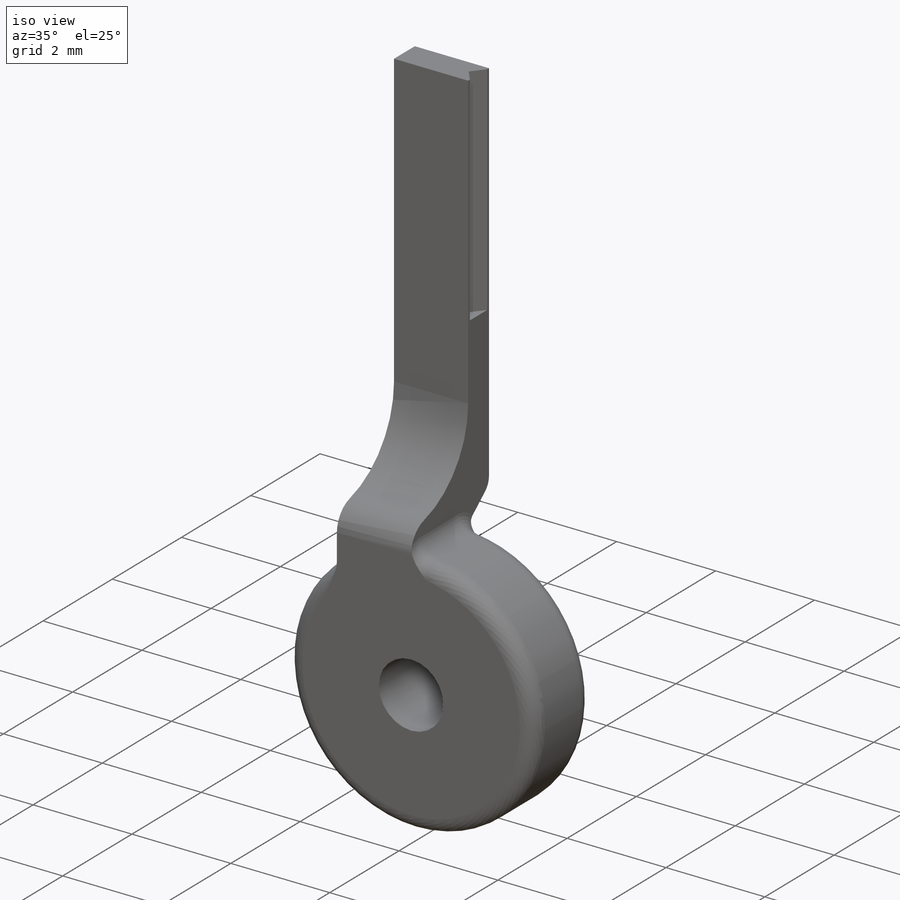
[diagram: iso view]
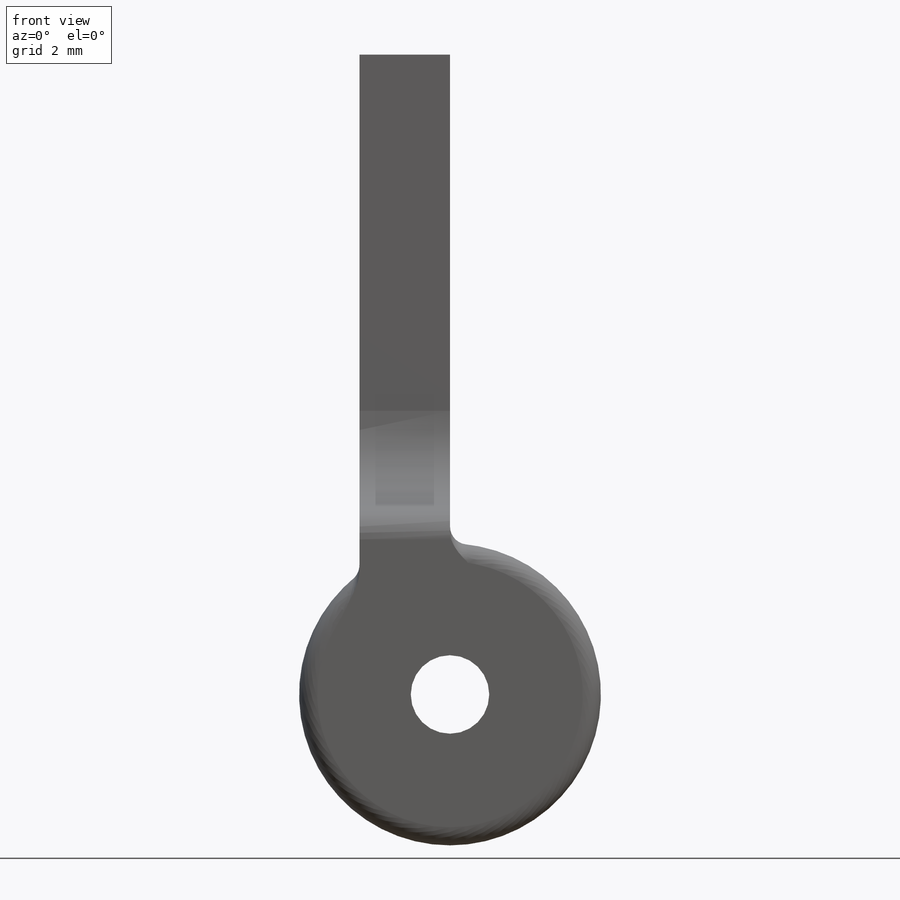
[diagram: front view]
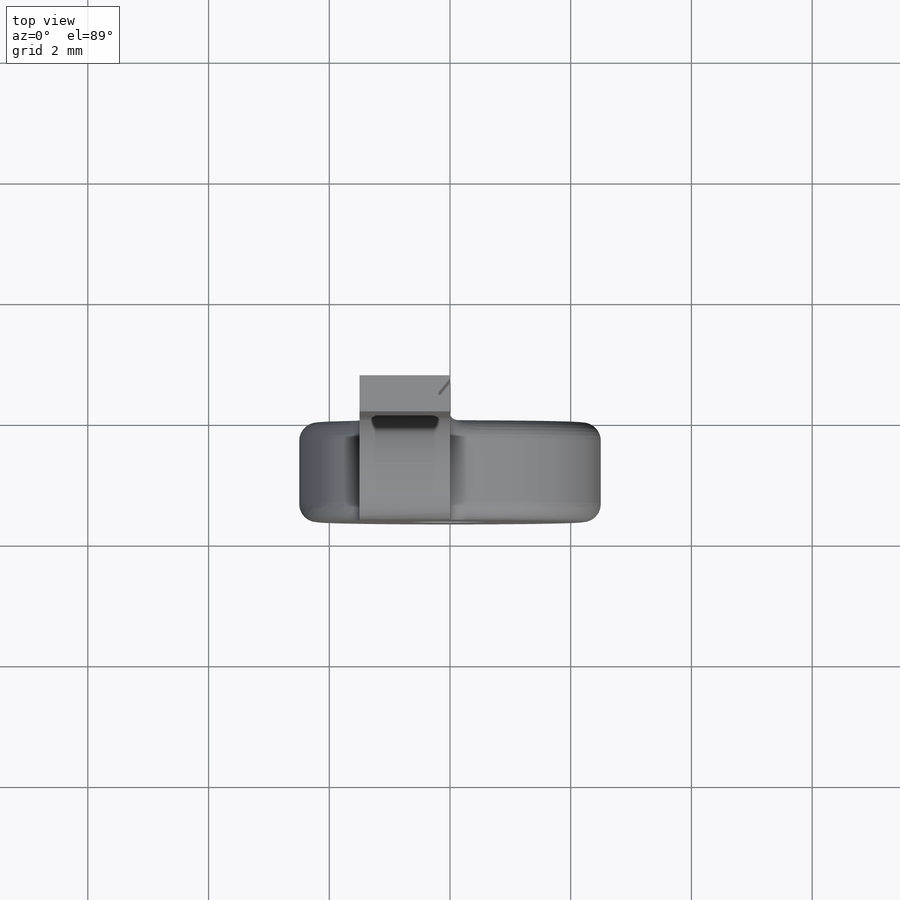
[diagram: top view]
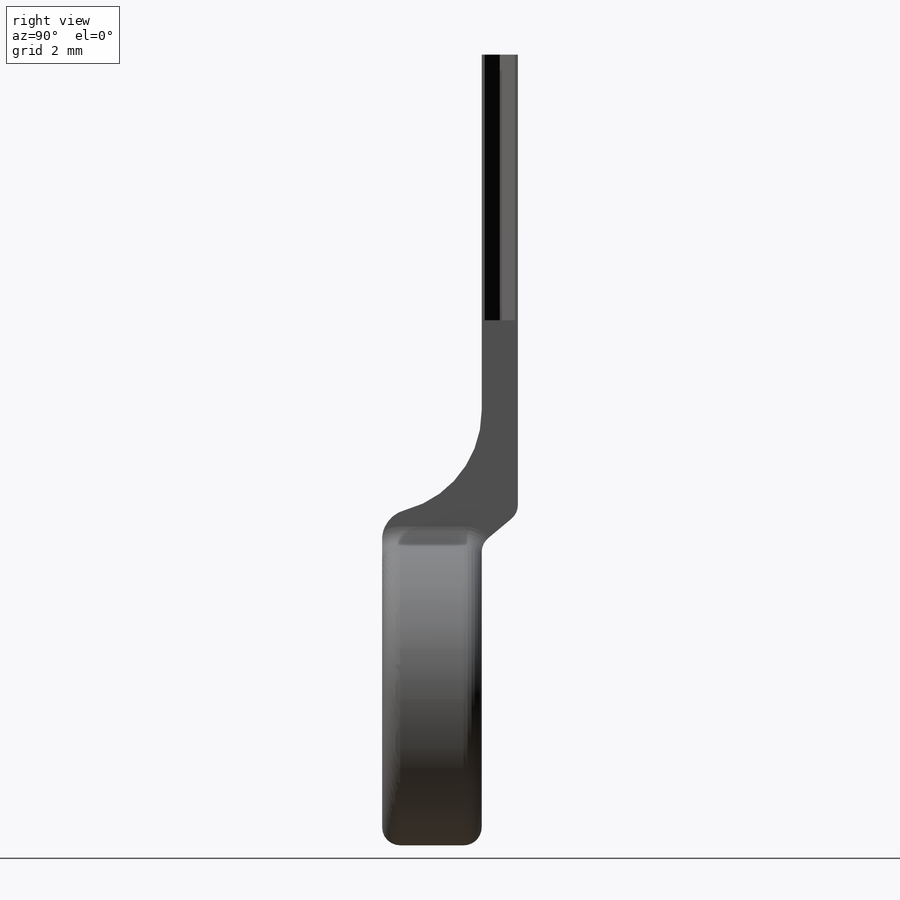
[diagram: right view]
SOLIDWORKS PART (.sldprt)
format: sldprt  version: not decoded by parser v0  size: 273,408 bytes
history: native  units: mm
features: sketch x7, fillet x6, cut_extrude x5, extrude x2, material x1 (+14 scaffold rows collapsed)
feature tree (35):
  scaffold x14  (default folders/planes/origin — collapsed)
  material  "Material <not specified>"
  sketch  "Sketch1"  dims[D1=5.0mm]
  extrude  "Extrude1"  Depth=1.65mm
  sketch  "Sketch2"  dims[D1=1.3mm]
  cut_extrude  "Extrude2"  [1 undecoded]
  sketch  "Sketch3"  dims[c1.D1=1.5mm c1.D2=2.2mm c1.D3=~0.129804mm c1.D4=~0.329804mm c2.D3=0.6mm c2.D4=1.5mm]
  extrude  "Extrude4"  Depth=10.6mm
  sketch  "Sketch4"
  cut_extrude  "Extrude5"  [1 undecoded]
  sketch  "Sketch6"  dims[D1=0.6mm D2=0.5mm]
  cut_extrude  "Extrude7"  [1 undecoded]
  fillet  "Fillet3"  Radius=1.7mm
  fillet  "Fillet6"  Radius=0.3mm
  fillet  "Fillet8"  Radius=0.3mm
  sketch  "Sketch7"  dims[D1=0.5mm]
  cut_extrude  "Extrude8"  [1 undecoded]
  fillet  "Fillet9"  Radius=0.3mm
  fillet  "Fillet10"  Radius=0.3mm
  sketch  "Sketch8"  dims[D1=0.3mm D2=0.2mm D3=0.05mm D4=0.05mm]
  cut_extrude  "Extrude9"  Depth=4.4mm
  fillet  "Fillet11"  Radius=0.5mm
decode coverage: 15 of 20 modeling features carry decoded parameters
note: ~ marks probable driven/reference dimensions
note: 4 parameter values undecoded
summary: no parameter record found for 4 features
note: suppression state not decoded; provenance and decode notes live in map.json
